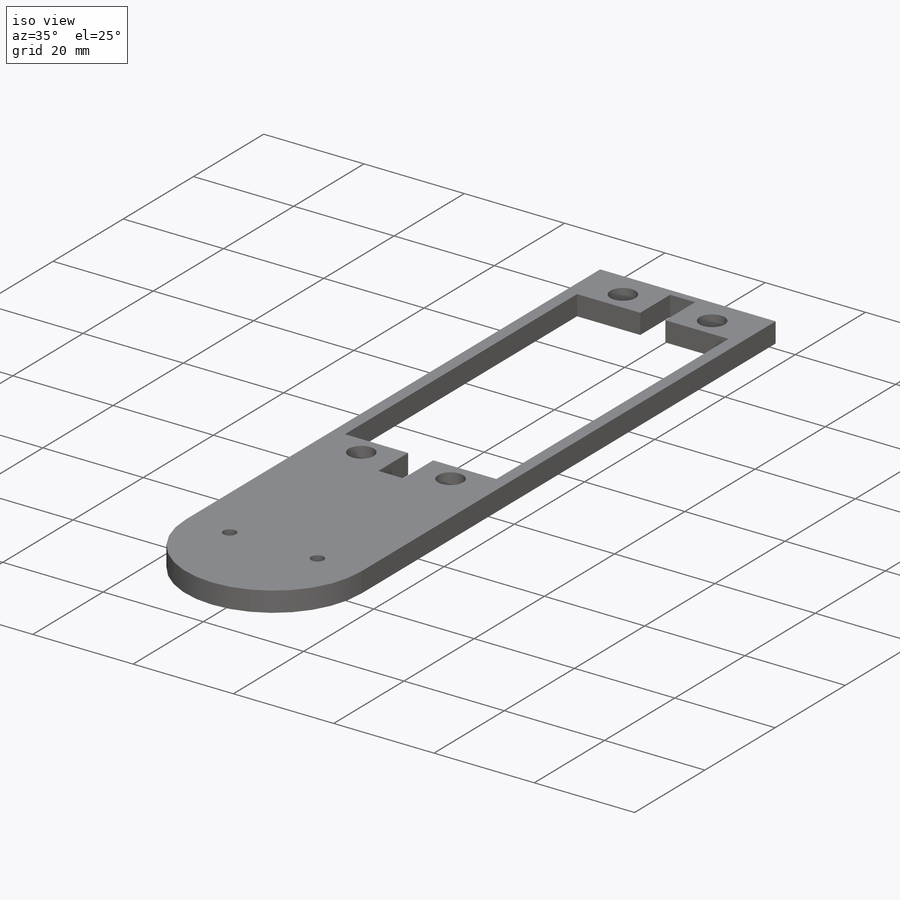
[diagram: iso view]
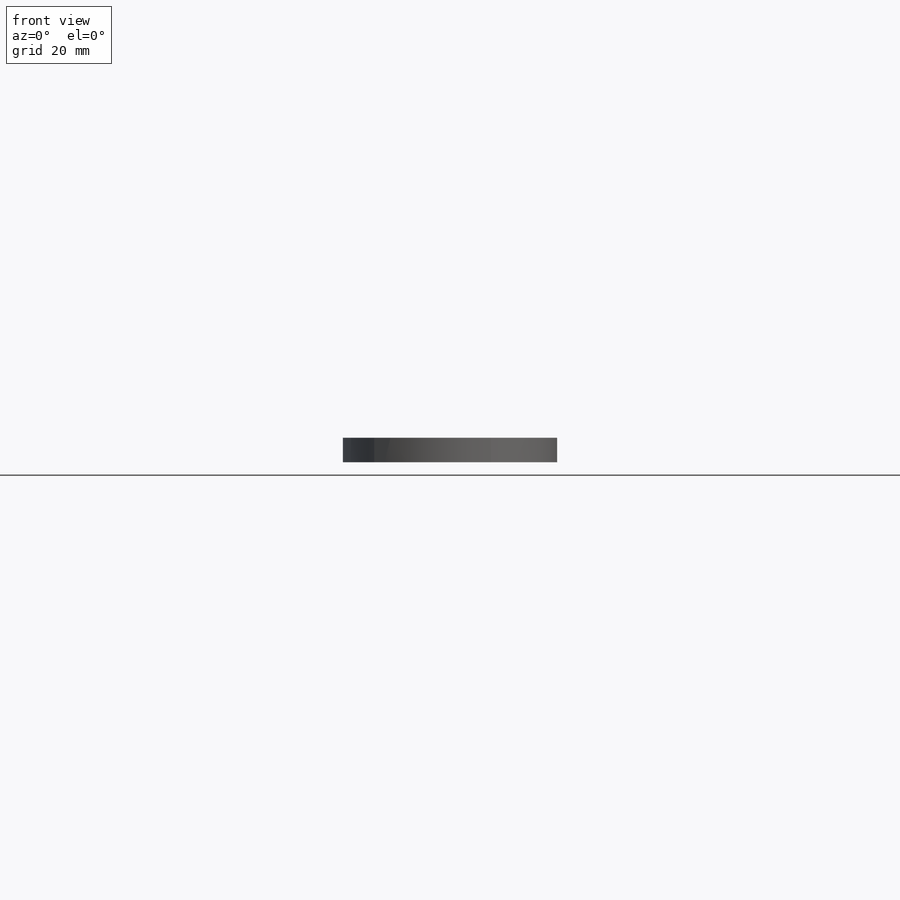
[diagram: front view]
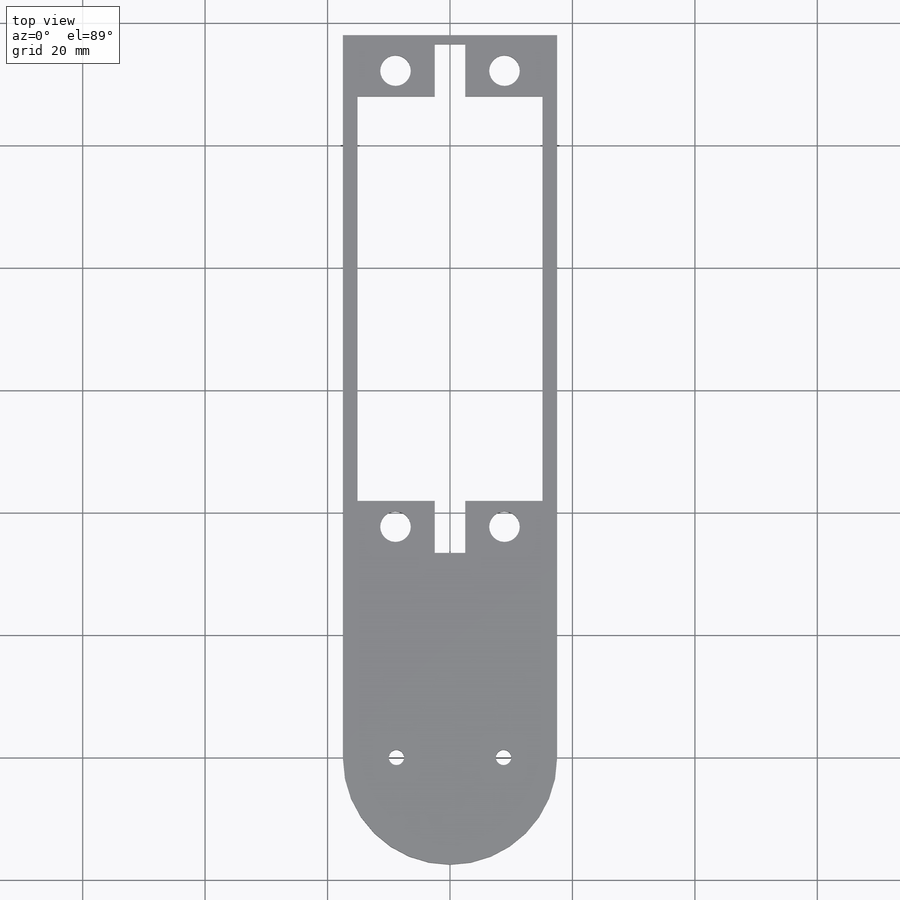
[diagram: top view]
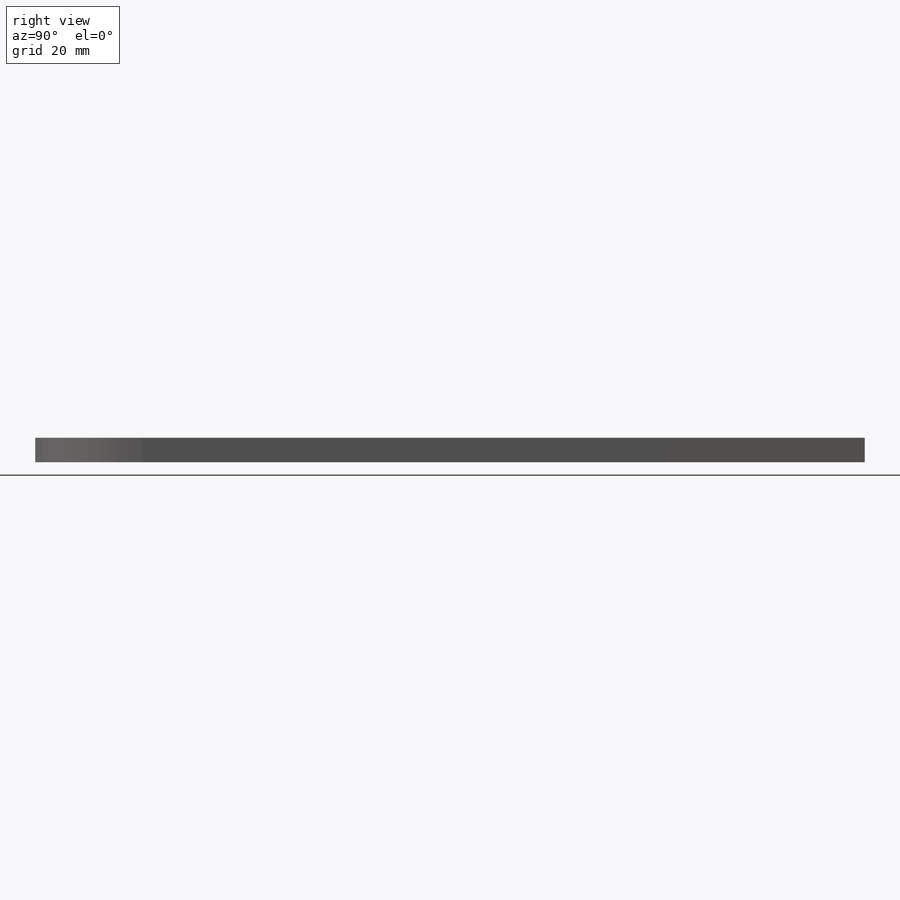
[diagram: right view]
SOLIDWORKS PART (.sldprt)
format: sldprt  version: not decoded by parser v0  size: 197,632 bytes
history: native  units: mm
features: sketch x4, cut_extrude x3, material x1, extrude x1 (+12 scaffold rows collapsed)
feature tree (21):
  scaffold x12  (default folders/planes/origin — collapsed)
  material  "Material <not specified>"
  sketch  "Sketch1"  dims[D1=118.0mm]
  extrude  "Boss-Extrude1"  Depth=4mm
  sketch  "Sketch2"  dims[D1=~31.860601mm]
  cut_extrude  "Cut-Extrude1"  Depth=4mm
  sketch  "Sketch6"  dims[c1.D3=5.0mm c1.D1=66.1mm c1.D2=30.2mm c2.D1=66.1mm c2.D2=30.2mm c2.D3=8.6mm c2.D4=4.2mm]
  cut_extrude  "Cut-Extrude5"  Depth=4mm
  sketch  "Sketch7"  dims[D1=~24.926921mm]
  cut_extrude  "Cut-Extrude6"  Depth=4mm
decode coverage: 8 of 8 modeling features carry decoded parameters
note: ~ marks probable driven/reference dimensions
note: suppression state not decoded; provenance and decode notes live in map.json
